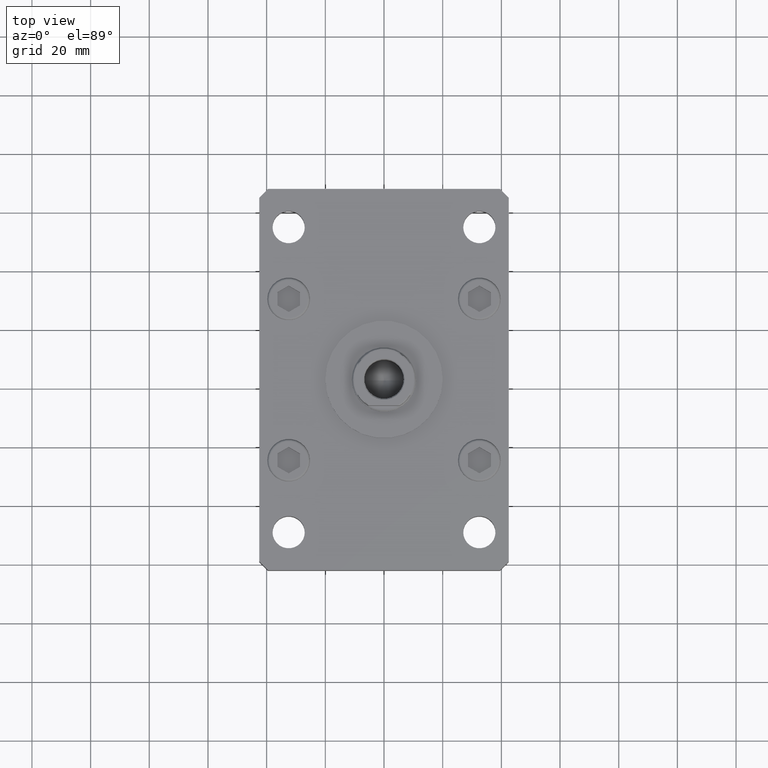
[diagram: clean part render]
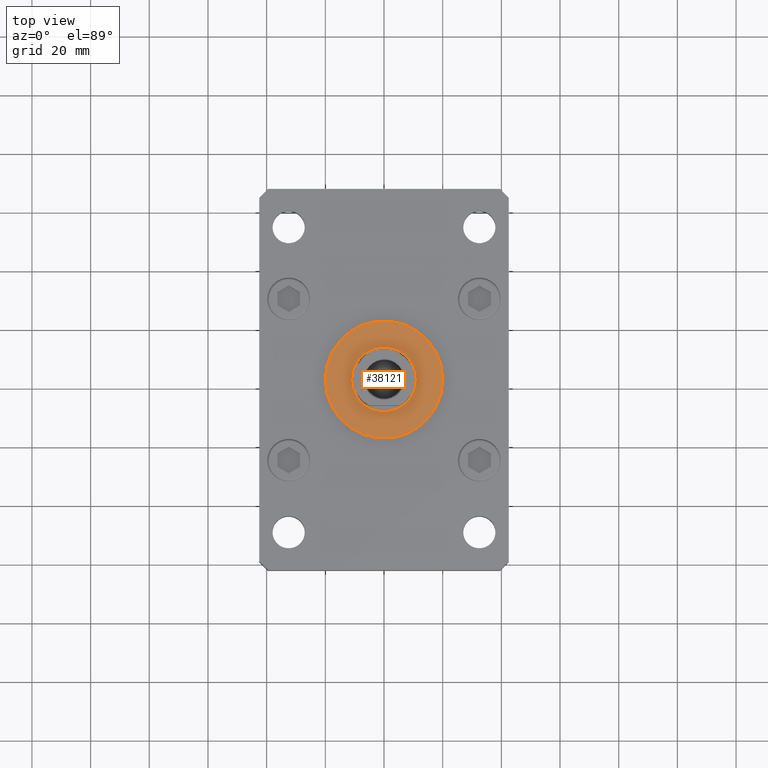
[diagram: same view with one face highlighted and labeled with its STEP entity id]
A machine part, top view. The second image highlights one B-rep face of the part: STEP entity #38121.
In plain terms, the highlighted planar face has unit normal (0, 0, 1).
Its self-contained STEP definition (entity closure, byte-faithful):
#1282 = ORIENTED_EDGE ( 'NONE', *, *, #26995, .F. ) ;
#3186 = AXIS2_PLACEMENT_3D ( 'NONE', #41046, #16362, #3873 ) ;
#3873 = DIRECTION ( 'NONE',  ( 1.000000000000000000, 0.000000000000000000, 0.000000000000000000 ) ) ;
#4898 = CARTESIAN_POINT ( 'NONE',  ( 0.000000000000000000, 0.000000000000000000, 17.00000000000000000 ) ) ;
#4906 = ORIENTED_EDGE ( 'NONE', *, *, #37407, .F. ) ;
#6928 = AXIS2_PLACEMENT_3D ( 'NONE', #46651, #21200, #29885 ) ;
#7607 = EDGE_CURVE ( 'NONE', #48381, #44912, #27148, .T. ) ;
#8383 = CIRCLE ( 'NONE', #3186, 11.00000000000000000 ) ;
#10251 = CARTESIAN_POINT ( 'NONE',  ( 11.00000000000000000, 0.000000000000000000, 17.00000000000000000 ) ) ;
#12892 = VERTEX_POINT ( 'NONE', #10251 ) ;
#13964 = CARTESIAN_POINT ( 'NONE',  ( 0.000000000000000000, 0.000000000000000000, 17.00000000000000000 ) ) ;
#16296 = ORIENTED_EDGE ( 'NONE', *, *, #41124, .T. ) ;
#16362 = DIRECTION ( 'NONE',  ( 0.000000000000000000, 0.000000000000000000, 1.000000000000000000 ) ) ;
#20015 = EDGE_LOOP ( 'NONE', ( #16296, #52298 ) ) ;
#20454 = CARTESIAN_POINT ( 'NONE',  ( 20.00000000000000000, 2.449293598294706513E-15, 17.00000000000000000 ) ) ;
#21200 = DIRECTION ( 'NONE',  ( 0.000000000000000000, 0.000000000000000000, 1.000000000000000000 ) ) ;
#21849 = FACE_BOUND ( 'NONE', #48263, .T. ) ;
#22699 = CARTESIAN_POINT ( 'NONE',  ( 0.000000000000000000, 0.000000000000000000, 17.00000000000000000 ) ) ;
#22973 = DIRECTION ( 'NONE',  ( 0.000000000000000000, 0.000000000000000000, 1.000000000000000000 ) ) ;
#23405 = CIRCLE ( 'NONE', #6928, 11.00000000000000000 ) ;
#24829 = VERTEX_POINT ( 'NONE', #42405 ) ;
#25415 = AXIS2_PLACEMENT_3D ( 'NONE', #22699, #22973, #42316 ) ;
#26995 = EDGE_CURVE ( 'NONE', #12892, #24829, #8383, .T. ) ;
#27148 = CIRCLE ( 'NONE', #25415, 20.00000000000000000 ) ;
#28545 = DIRECTION ( 'NONE',  ( 1.000000000000000000, 0.000000000000000000, 0.000000000000000000 ) ) ;
#29885 = DIRECTION ( 'NONE',  ( 1.000000000000000000, 0.000000000000000000, 0.000000000000000000 ) ) ;
#30010 = DIRECTION ( 'NONE',  ( 0.000000000000000000, 0.000000000000000000, 1.000000000000000000 ) ) ;
#30534 = DIRECTION ( 'NONE',  ( 1.000000000000000000, 0.000000000000000000, -0.000000000000000000 ) ) ;
#35131 = FACE_OUTER_BOUND ( 'NONE', #20015, .T. ) ;
#36509 = CIRCLE ( 'NONE', #52084, 20.00000000000000000 ) ;
#36686 = DIRECTION ( 'NONE',  ( 0.000000000000000000, 0.000000000000000000, 1.000000000000000000 ) ) ;
#37407 = EDGE_CURVE ( 'NONE', #24829, #12892, #23405, .T. ) ;
#38121 = ADVANCED_FACE ( 'NONE', ( #21849, #35131 ), #51119, .T. ) ;
#41046 = CARTESIAN_POINT ( 'NONE',  ( 0.000000000000000000, 0.000000000000000000, 17.00000000000000000 ) ) ;
#41124 = EDGE_CURVE ( 'NONE', #44912, #48381, #36509, .T. ) ;
#42316 = DIRECTION ( 'NONE',  ( 1.000000000000000000, 0.000000000000000000, 0.000000000000000000 ) ) ;
#42405 = CARTESIAN_POINT ( 'NONE',  ( -11.00000000000000000, 1.347111479062088405E-15, 17.00000000000000000 ) ) ;
#44845 = CARTESIAN_POINT ( 'NONE',  ( -20.00000000000000000, 0.000000000000000000, 17.00000000000000000 ) ) ;
#44912 = VERTEX_POINT ( 'NONE', #44845 ) ;
#46651 = CARTESIAN_POINT ( 'NONE',  ( 0.000000000000000000, 0.000000000000000000, 17.00000000000000000 ) ) ;
#48263 = EDGE_LOOP ( 'NONE', ( #1282, #4906 ) ) ;
#48381 = VERTEX_POINT ( 'NONE', #20454 ) ;
#51119 = PLANE ( 'NONE',  #52865 ) ;
#52084 = AXIS2_PLACEMENT_3D ( 'NONE', #4898, #36686, #28545 ) ;
#52298 = ORIENTED_EDGE ( 'NONE', *, *, #7607, .T. ) ;
#52865 = AXIS2_PLACEMENT_3D ( 'NONE', #13964, #30010, #30534 ) ;